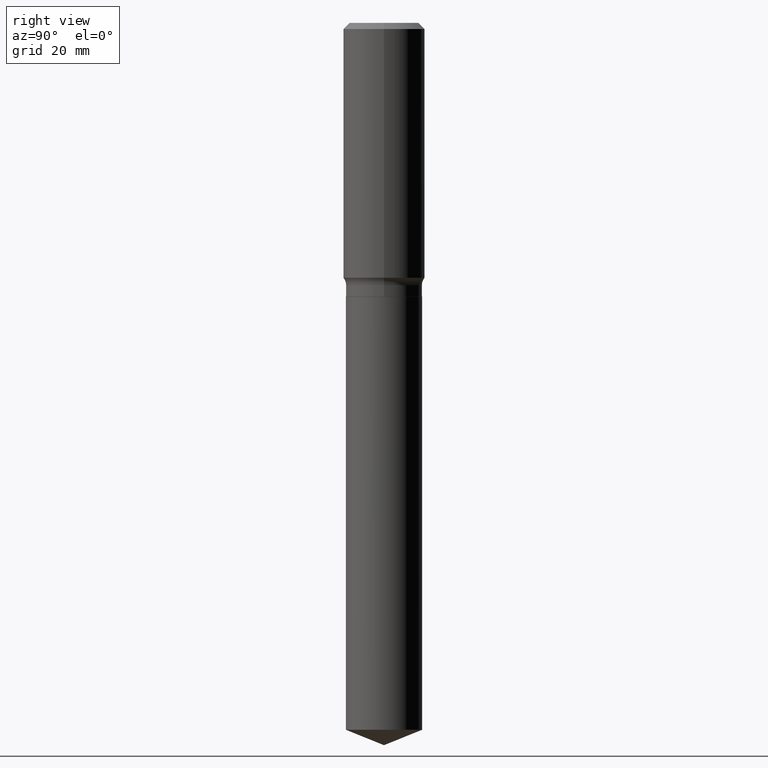
[diagram: clean part render]
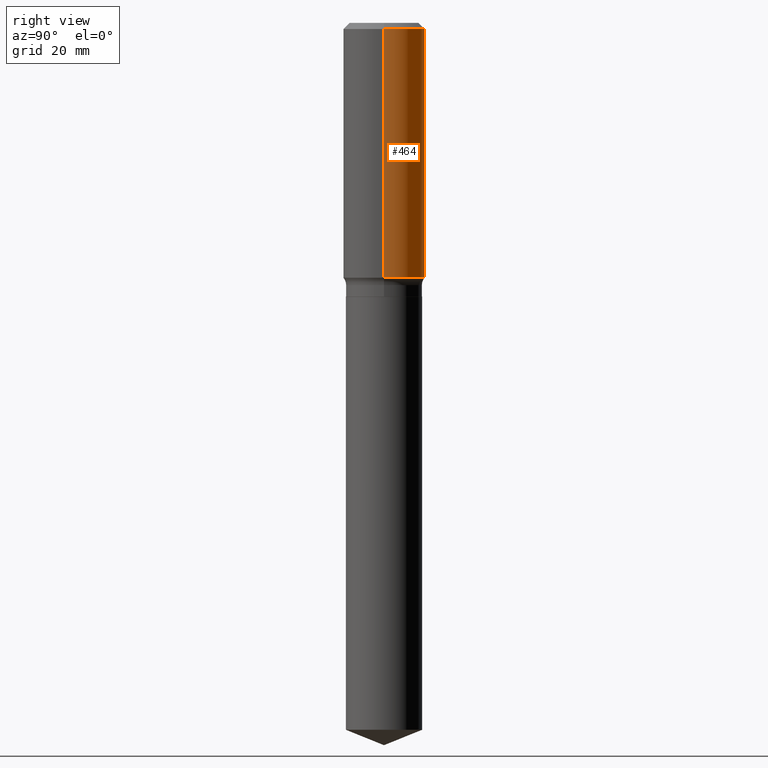
[diagram: same view with one face highlighted and labeled with its STEP entity id]
A machine part, right view. The second image highlights one B-rep face of the part: STEP entity #464.
In plain terms, the highlighted cylindrical surface (partial cylindrical patch) has radius 7.0002 mm, axis along (-0, 0, 1).
Its self-contained STEP definition (entity closure, byte-faithful):
#12 = LINE ( 'NONE', #237, #440 ) ;
#21 = DIRECTION ( 'NONE',  ( -2.445468806185136597E-29, 3.491481338843145583E-15, 1.000000000000000000 ) ) ;
#63 = EDGE_CURVE ( 'NONE', #426, #189, #12, .T. ) ;
#71 = ORIENTED_EDGE ( 'NONE', *, *, #384, .T. ) ;
#106 = DIRECTION ( 'NONE',  ( 1.000000000000000000, -6.982962677686265922E-15, 0.000000000000000000 ) ) ;
#115 = DIRECTION ( 'NONE',  ( -2.445468806185136597E-29, 3.491481338843145583E-15, 1.000000000000000000 ) ) ;
#126 = ORIENTED_EDGE ( 'NONE', *, *, #63, .F. ) ;
#143 = AXIS2_PLACEMENT_3D ( 'NONE', #333, #274, #106 ) ;
#189 = VERTEX_POINT ( 'NONE', #247 ) ;
#207 = CARTESIAN_POINT ( 'NONE',  ( -0.2756000000000001227, 1.958255779754836984E-15, -1.355658510874252567E-29 ) ) ;
#223 = CARTESIAN_POINT ( 'NONE',  ( -0.2756000000000000116, -1.122002406709343696E-15, -0.04134000000000026542 ) ) ;
#228 = DIRECTION ( 'NONE',  ( -2.445468806185136877E-29, 3.491481338843145188E-15, 1.000000000000000000 ) ) ;
#236 = DIRECTION ( 'NONE',  ( -2.445468806185136877E-29, 3.491481338843145188E-15, 1.000000000000000000 ) ) ;
#237 = CARTESIAN_POINT ( 'NONE',  ( 0.2756000000000001227, -1.924504513970336137E-15, 1.343874319409360548E-29 ) ) ;
#247 = CARTESIAN_POINT ( 'NONE',  ( 0.2756000000000000116, -2.068842352518111732E-15, -0.04134000000000026542 ) ) ;
#253 = DIRECTION ( 'NONE',  ( 1.000000000000000000, -6.982962677686267499E-15, 0.000000000000000000 ) ) ;
#255 = ORIENTED_EDGE ( 'NONE', *, *, #429, .T. ) ;
#274 = DIRECTION ( 'NONE',  ( -2.445468806185136597E-29, 3.491481338843145583E-15, 1.000000000000000000 ) ) ;
#299 = CIRCLE ( 'NONE', #143, 0.2756000000000001782 ) ;
#322 = LINE ( 'NONE', #207, #481 ) ;
#324 = CYLINDRICAL_SURFACE ( 'NONE', #326, 0.2756000000000001227 ) ;
#326 = AXIS2_PLACEMENT_3D ( 'NONE', #490, #21, #479 ) ;
#333 = CARTESIAN_POINT ( 'NONE',  ( 4.213792230418472128E-29, -6.016178534380584976E-15, -1.723102016170008355 ) ) ;
#334 = CIRCLE ( 'NONE', #461, 0.2756000000000000116 ) ;
#337 = FACE_OUTER_BOUND ( 'NONE', #423, .T. ) ;
#339 = VERTEX_POINT ( 'NONE', #380 ) ;
#362 = EDGE_CURVE ( 'NONE', #189, #492, #334, .T. ) ;
#372 = CARTESIAN_POINT ( 'NONE',  ( 0.2756000000000002337, -7.940683048350921508E-15, -1.723102016170008355 ) ) ;
#380 = CARTESIAN_POINT ( 'NONE',  ( -0.2756000000000002337, -4.057922754625746809E-15, -1.723102016170008355 ) ) ;
#384 = EDGE_CURVE ( 'NONE', #339, #492, #322, .T. ) ;
#423 = EDGE_LOOP ( 'NONE', ( #255, #71, #453, #126 ) ) ;
#426 = VERTEX_POINT ( 'NONE', #372 ) ;
#429 = EDGE_CURVE ( 'NONE', #426, #339, #299, .T. ) ;
#440 = VECTOR ( 'NONE', #228, 39.37007874015748143 ) ;
#453 = ORIENTED_EDGE ( 'NONE', *, *, #362, .F. ) ;
#461 = AXIS2_PLACEMENT_3D ( 'NONE', #491, #115, #253 ) ;
#464 = ADVANCED_FACE ( 'NONE', ( #337 ), #324, .T. ) ;
#479 = DIRECTION ( 'NONE',  ( 1.000000000000000000, -6.982962677686267499E-15, 4.876176775795935793E-29 ) ) ;
#481 = VECTOR ( 'NONE', #236, 39.37007874015748143 ) ;
#490 = CARTESIAN_POINT ( 'NONE',  ( 0.000000000000000000, 0.000000000000000000, 0.000000000000000000 ) ) ;
#491 = CARTESIAN_POINT ( 'NONE',  ( 1.010956804476942048E-30, -1.443378385477765563E-16, -0.04134000000000026542 ) ) ;
#492 = VERTEX_POINT ( 'NONE', #223 ) ;